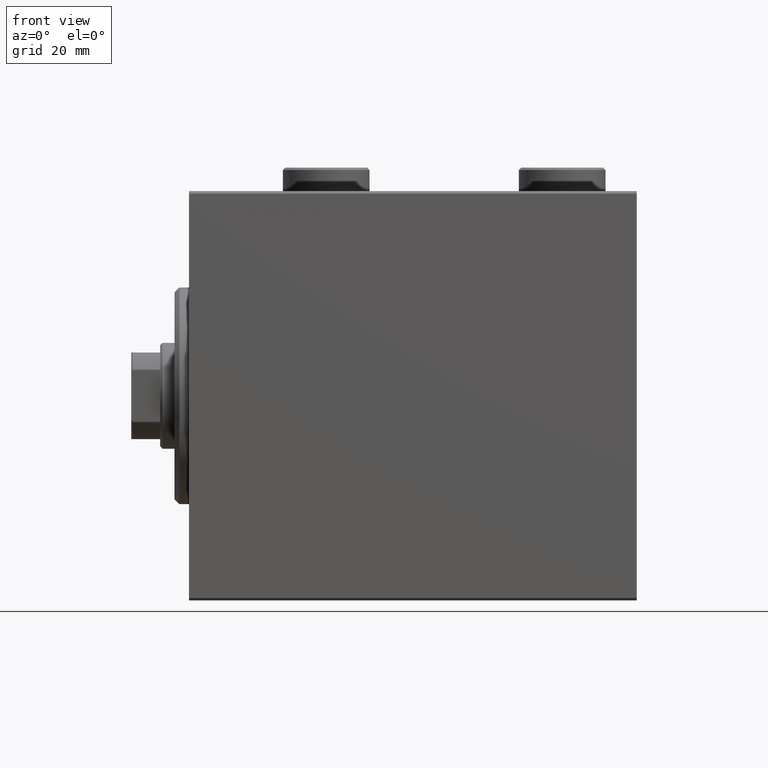
[diagram: clean part render]
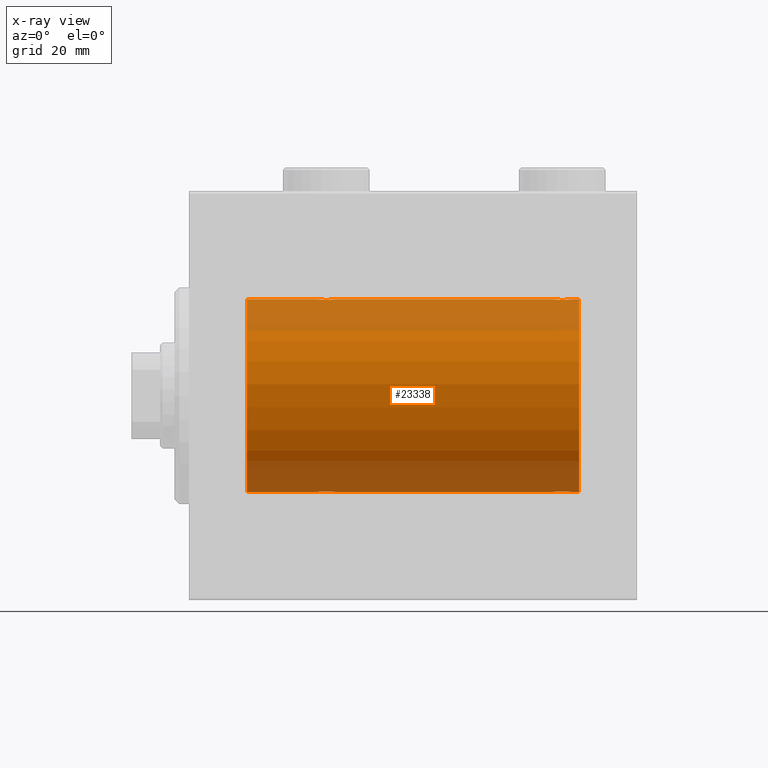
[diagram: x-ray — body ghosted, one internal face saturated and labeled with its STEP entity id]
A machine part, front view, then the same camera in x-ray: the body is ghosted and one INTERNAL B-rep face — a face not visible from any outside direction — is saturated and labeled: STEP entity #23338.
In plain terms, the highlighted cylindrical surface (partial cylindrical patch) has radius 20 mm, axis along (-1, -0, -0).
Its self-contained STEP definition (entity closure, byte-faithful):
#63 = CARTESIAN_POINT ( 'NONE',  ( 75.90225308445273811, -1.230936344679278038, -19.96293863536309487 ) ) ;
#438 = DIRECTION ( 'NONE',  ( -1.000000000000000000, 0.000000000000000000, 0.000000000000000000 ) ) ;
#499 = CARTESIAN_POINT ( 'NONE',  ( 27.17693331080529973, -1.505486175075773758, 19.94347168299867334 ) ) ;
#519 = CARTESIAN_POINT ( 'NONE',  ( 76.85651471266960755, -1.898187925611341198, -19.90978194174746818 ) ) ;
#727 = CARTESIAN_POINT ( 'NONE',  ( 29.01648532918905943, -1.936551476643006753, 19.90603968831098669 ) ) ;
#896 = CARTESIAN_POINT ( 'NONE',  ( 26.50000000000001066, -0.2644051013331030209, -20.00000000000000355 ) ) ;
#1372 = CARTESIAN_POINT ( 'NONE',  ( 26.75313023696928738, -1.008108445278687704, -19.97602680192586533 ) ) ;
#1428 = CARTESIAN_POINT ( 'NONE',  ( 30.24686976303072683, -1.008108445278685705, 19.97602680192586888 ) ) ;
#1672 = VECTOR ( 'NONE', #37899, 1000.000000000000000 ) ;
#2284 = ORIENTED_EDGE ( 'NONE', *, *, #42027, .F. ) ;
#2572 = ORIENTED_EDGE ( 'NONE', *, *, #6962, .T. ) ;
#2782 = CARTESIAN_POINT ( 'NONE',  ( 78.14348528733044930, -1.898187925611334315, 19.90978194174746818 ) ) ;
#3000 = CARTESIAN_POINT ( 'NONE',  ( 77.76077256031568652, -1.987205673487806967, 19.90104673894210663 ) ) ;
#3229 = CARTESIAN_POINT ( 'NONE',  ( 76.17693331080532460, -1.505486175075777311, 19.94347168299868045 ) ) ;
#3537 = CARTESIAN_POINT ( 'NONE',  ( 78.14630673924648363, -1.897222639860595139, -19.90987429971497136 ) ) ;
#3890 = VERTEX_POINT ( 'NONE', #41304 ) ;
#3983 = CARTESIAN_POINT ( 'NONE',  ( 78.50306556339604924, -1.735203193119893461, -19.92471783160911514 ) ) ;
#4141 = CARTESIAN_POINT ( 'NONE',  ( 28.76358144091416236, -1.986835489085814199, -19.90108393514801222 ) ) ;
#4199 = CARTESIAN_POINT ( 'NONE',  ( 28.76077256031567586, -1.987205673487809410, 19.90104673894210663 ) ) ;
#4374 = CARTESIAN_POINT ( 'NONE',  ( 28.23922743968432059, -1.987205673487808966, -19.90104673894211018 ) ) ;
#4472 = DIRECTION ( 'NONE',  ( 0.000000000000000000, 0.000000000000000000, 1.000000000000000000 ) ) ;
#4832 = CARTESIAN_POINT ( 'NONE',  ( 29.14630673924643744, -1.897222639860594029, -19.90987429971496780 ) ) ;
#4835 = ORIENTED_EDGE ( 'NONE', *, *, #15809, .T. ) ;
#4890 = LINE ( 'NONE', #40601, #44136 ) ;
#5067 = CARTESIAN_POINT ( 'NONE',  ( 28.36941128289166159, -2.000100592782553921, -19.89973863218036598 ) ) ;
#5332 = CARTESIAN_POINT ( 'NONE',  ( 81.00000000000000000, 0.000000000000000000, 20.00000000000000000 ) ) ;
#5348 = CARTESIAN_POINT ( 'NONE',  ( 30.50000000000000000, -1.082540790071359066E-15, 20.00000000000000000 ) ) ;
#5679 = CIRCLE ( 'NONE', #40254, 20.00000000000000000 ) ;
#6008 = CARTESIAN_POINT ( 'NONE',  ( 78.71805419472153176, -1.591668229360190034, 19.93669678979813042 ) ) ;
#6045 = VERTEX_POINT ( 'NONE', #18847 ) ;
#6229 = CARTESIAN_POINT ( 'NONE',  ( 78.38579076670730217, -1.797933656607910491, 19.91908554465557657 ) ) ;
#6682 = CARTESIAN_POINT ( 'NONE',  ( 30.50000000000000000, 2.449293582768389958E-15, -20.00000000000000000 ) ) ;
#6755 = CARTESIAN_POINT ( 'NONE',  ( 75.55320515808202231, -0.5270924491156711023, -19.99450181871975474 ) ) ;
#6784 = LINE ( 'NONE', #23852, #1672 ) ;
#6962 = EDGE_CURVE ( 'NONE', #38699, #45073, #5679, .T. ) ;
#6981 = CARTESIAN_POINT ( 'NONE',  ( 76.61420923329272625, -1.797933656607920039, -19.91908554465557657 ) ) ;
#7165 = ORIENTED_EDGE ( 'NONE', *, *, #21852, .F. ) ;
#7428 = CARTESIAN_POINT ( 'NONE',  ( 79.44755062882509833, -0.5243189001515005110, -19.99457699142850231 ) ) ;
#7628 = CARTESIAN_POINT ( 'NONE',  ( 26.50000000000000355, -1.552636033655995435E-23, 20.00000000000000000 ) ) ;
#7643 = CARTESIAN_POINT ( 'NONE',  ( 28.23641855908585541, -1.986835489085815087, 19.90108393514801222 ) ) ;
#8348 = CIRCLE ( 'NONE', #10546, 20.00000000000000000 ) ;
#8451 = EDGE_CURVE ( 'NONE', #27654, #3890, #35405, .T. ) ;
#8507 = CARTESIAN_POINT ( 'NONE',  ( 29.38829437207091999, -1.796691196322316664, -19.91919800395357143 ) ) ;
#8666 = LINE ( 'NONE', #30094, #27153 ) ;
#9029 = VERTEX_POINT ( 'NONE', #32947 ) ;
#9244 = CARTESIAN_POINT ( 'NONE',  ( 79.50000000000000000, -0.2644051013330986355, 19.99999999999999645 ) ) ;
#9691 = VECTOR ( 'NONE', #40810, 1000.000000000000000 ) ;
#9906 = CARTESIAN_POINT ( 'NONE',  ( 76.85369326075358742, -1.897222639860597360, 19.90987429971497491 ) ) ;
#9942 = B_SPLINE_CURVE_WITH_KNOTS ( 'NONE', 3,
 ( #28382, #42446, #10877, #32060, #24931, #499, #39439, #28620, #38982, #11100, #25154, #7643, #21702, #35749, #4199, #727, #18229, #28842, #26771, #43596, #33672, #40138, #1428, #36688, #12253, #5348 ),
 .UNSPECIFIED., .F., .F.,
 ( 4, 2, 2, 2, 2, 2, 2, 2, 2, 2, 2, 2, 4 ),
 ( 0.006256819553329830141, 0.007038738568778805417, 0.007820657584227780693, 0.008211617091952264427, 0.008602576599676748162, 0.008993536107401231897, 0.009384495615125715631, 0.009775455122850199366, 0.01016641463057468137, 0.01055737413829916510, 0.01094833364602364884, 0.01173025266147261630, 0.01251217167692158204 ),
 .UNSPECIFIED. ) ;
#10367 = CARTESIAN_POINT ( 'NONE',  ( 30.24825913460018612, -1.005710574260838985, -19.97614991974274190 ) ) ;
#10395 = ORIENTED_EDGE ( 'NONE', *, *, #21653, .T. ) ;
#10546 = AXIS2_PLACEMENT_3D ( 'NONE', #37780, #13568, #30638 ) ;
#10877 = CARTESIAN_POINT ( 'NONE',  ( 26.55244937117492299, -0.5243189001515023984, 19.99457699142850942 ) ) ;
#10895 = CARTESIAN_POINT ( 'NONE',  ( 79.50000000000001421, 2.449293582762867932E-15, -20.00000000000000000 ) ) ;
#11100 = CARTESIAN_POINT ( 'NONE',  ( 27.85369326075355900, -1.897222639860597360, 19.90987429971497136 ) ) ;
#11115 = CARTESIAN_POINT ( 'NONE',  ( 78.82306668919471804, -1.505486175075773758, -19.94347168299867690 ) ) ;
#11269 = CARTESIAN_POINT ( 'NONE',  ( 79.50000000000001421, 2.449293582762867932E-15, -20.00000000000000000 ) ) ;
#12194 = CARTESIAN_POINT ( 'NONE',  ( 27.17903093152710525, -1.507328959728492457, -19.94333197382385592 ) ) ;
#12253 = CARTESIAN_POINT ( 'NONE',  ( 30.50000000000000355, -0.2644051013330980249, 20.00000000000000355 ) ) ;
#12919 = CARTESIAN_POINT ( 'NONE',  ( 79.44679484191796348, -0.5270924491156662173, 19.99450181871975829 ) ) ;
#13435 = LINE ( 'NONE', #17563, #22559 ) ;
#13568 = DIRECTION ( 'NONE',  ( -1.000000000000000000, 0.000000000000000000, 0.000000000000000000 ) ) ;
#13819 = CARTESIAN_POINT ( 'NONE',  ( 30.44755062882508412, -0.5243189001514996228, -19.99457699142849876 ) ) ;
#13895 = CARTESIAN_POINT ( 'NONE',  ( 75.50000000000001421, -5.133775462521235346E-15, -20.00000000000000000 ) ) ;
#14034 = CARTESIAN_POINT ( 'NONE',  ( 29.50306556339602437, -1.735203193119894349, -19.92471783160910803 ) ) ;
#14567 = CARTESIAN_POINT ( 'NONE',  ( 77.76358144091416591, -1.986835489085815309, -19.90108393514801577 ) ) ;
#14969 = AXIS2_PLACEMENT_3D ( 'NONE', #22216, #18740, #4472 ) ;
#15421 = CARTESIAN_POINT ( 'NONE',  ( 26.50000000000000355, -3.809869420541414000E-15, -20.00000000000000000 ) ) ;
#15809 = EDGE_CURVE ( 'NONE', #28158, #27654, #6784, .T. ) ;
#16587 = CARTESIAN_POINT ( 'NONE',  ( 77.23641855908587672, -1.986835489085812867, 19.90108393514801577 ) ) ;
#17490 = CARTESIAN_POINT ( 'NONE',  ( 29.72028945794465571, -1.589957321664208223, -19.93683391378736047 ) ) ;
#17563 = CARTESIAN_POINT ( 'NONE',  ( 81.00000000000000000, 0.000000000000000000, 20.00000000000000000 ) ) ;
#18010 = CARTESIAN_POINT ( 'NONE',  ( 78.01923512135279282, -1.935816449315126642, -19.90611141657402072 ) ) ;
#18064 = ORIENTED_EDGE ( 'NONE', *, *, #8451, .T. ) ;
#18229 = CARTESIAN_POINT ( 'NONE',  ( 29.14348528733042798, -1.898187925611338089, 19.90978194174746818 ) ) ;
#18399 = CARTESIAN_POINT ( 'NONE',  ( 27.85651471266959334, -1.898187925611338533, -19.90978194174746818 ) ) ;
#18740 = DIRECTION ( 'NONE',  ( -1.000000000000000000, -0.000000000000000000, -0.000000000000000000 ) ) ;
#18847 = CARTESIAN_POINT ( 'NONE',  ( 75.50000000000001421, -1.553188236289650144E-23, 20.00000000000000000 ) ) ;
#18862 = CARTESIAN_POINT ( 'NONE',  ( 29.01923512135276795, -1.935816449315124643, -19.90611141657401717 ) ) ;
#19097 = CARTESIAN_POINT ( 'NONE',  ( 27.49932780860757475, -1.736582545981376180, -19.92459705242981371 ) ) ;
#20810 = ORIENTED_EDGE ( 'NONE', *, *, #37667, .T. ) ;
#20975 = ORIENTED_EDGE ( 'NONE', *, *, #44849, .F. ) ;
#21485 = DIRECTION ( 'NONE',  ( -1.000000000000000000, -0.000000000000000000, -0.000000000000000000 ) ) ;
#21487 = CARTESIAN_POINT ( 'NONE',  ( 79.09941524884031594, -1.228758402364235947, -19.96307487248084556 ) ) ;
#21649 = CARTESIAN_POINT ( 'NONE',  ( 26.55320515808203297, -0.5270924491156698810, -19.99450181871976184 ) ) ;
#21653 = EDGE_CURVE ( 'NONE', #9029, #38699, #27749, .T. ) ;
#21702 = CARTESIAN_POINT ( 'NONE',  ( 28.36634803857552356, -1.999898234284064769, 19.89975896996866567 ) ) ;
#21721 = CARTESIAN_POINT ( 'NONE',  ( 79.50000000000001421, 9.984444632918768135E-16, 20.00000000000000000 ) ) ;
#21852 = EDGE_CURVE ( 'NONE', #28158, #32538, #8348, .T. ) ;
#22216 = CARTESIAN_POINT ( 'NONE',  ( 81.00000000000000000, 0.000000000000000000, 0.000000000000000000 ) ) ;
#22559 = VECTOR ( 'NONE', #21485, 1000.000000000000000 ) ;
#22924 = VERTEX_POINT ( 'NONE', #7628 ) ;
#23108 = B_SPLINE_CURVE_WITH_KNOTS ( 'NONE', 3,
 ( #6682, #31327, #13819, #10367, #24419, #38477, #17490, #14034, #8507, #4832, #18862, #4141, #35936, #5067, #4374, #39852, #18399, #40321, #19097, #39383, #12194, #26258, #1372, #21649, #896, #15421 ),
 .UNSPECIFIED., .F., .F.,
 ( 4, 2, 2, 2, 2, 2, 2, 2, 2, 2, 2, 2, 4 ),
 ( 0.006256819553329842284, 0.007038738568778818427, 0.007820657584227792836, 0.008211617091952278305, 0.008602576599676762040, 0.008993536107401245774, 0.009384495615125729509, 0.009775455122850213244, 0.01016641463057469871, 0.01055737413829918071, 0.01094833364602366618, 0.01173025266147263365, 0.01251217167692159939 ),
 .UNSPECIFIED. ) ;
#23338 = ADVANCED_FACE ( 'NONE', ( #39959 ), #25898, .F. ) ;
#23530 = CARTESIAN_POINT ( 'NONE',  ( 78.01648532918905232, -1.936551476643001646, 19.90603968831098669 ) ) ;
#23852 = CARTESIAN_POINT ( 'NONE',  ( 81.00000000000000000, 2.449293598294706513E-15, -20.00000000000000000 ) ) ;
#23964 = CARTESIAN_POINT ( 'NONE',  ( 77.36634803857556619, -1.999898234284061216, 19.89975896996866922 ) ) ;
#24199 = CARTESIAN_POINT ( 'NONE',  ( 75.55244937117491588, -0.5243189001515020653, 19.99457699142849876 ) ) ;
#24419 = CARTESIAN_POINT ( 'NONE',  ( 30.09941524884030173, -1.228758402364235502, -19.96307487248084911 ) ) ;
#24931 = CARTESIAN_POINT ( 'NONE',  ( 26.90058475115969117, -1.228758402364236169, 19.96307487248083845 ) ) ;
#25154 = CARTESIAN_POINT ( 'NONE',  ( 27.98076487864722850, -1.935816449315125753, 19.90611141657402072 ) ) ;
#25172 = CARTESIAN_POINT ( 'NONE',  ( 76.17903093152709459, -1.507328959728491791, -19.94333197382385592 ) ) ;
#25286 = ORIENTED_EDGE ( 'NONE', *, *, #33674, .F. ) ;
#25787 = DIRECTION ( 'NONE',  ( 0.000000000000000000, 0.000000000000000000, 1.000000000000000000 ) ) ;
#25898 = CYLINDRICAL_SURFACE ( 'NONE', #14969, 20.00000000000000000 ) ;
#26258 = CARTESIAN_POINT ( 'NONE',  ( 26.90225308445269903, -1.230936344679278260, -19.96293863536309132 ) ) ;
#26763 = CARTESIAN_POINT ( 'NONE',  ( 75.50000000000001421, -1.553188236289650144E-23, 20.00000000000000000 ) ) ;
#26771 = CARTESIAN_POINT ( 'NONE',  ( 29.50067219139243235, -1.736582545981374182, 19.92459705242980306 ) ) ;
#26985 = CARTESIAN_POINT ( 'NONE',  ( 76.49693443660399339, -1.735203193119890352, 19.92471783160910803 ) ) ;
#27153 = VECTOR ( 'NONE', #37232, 1000.000000000000000 ) ;
#27208 = CARTESIAN_POINT ( 'NONE',  ( 76.27971054205535495, -1.589957321664204448, 19.93683391378736403 ) ) ;
#27213 = CARTESIAN_POINT ( 'NONE',  ( 81.00000000000000000, 2.449293598294706513E-15, -20.00000000000000000 ) ) ;
#27654 = VERTEX_POINT ( 'NONE', #11269 ) ;
#27729 = CARTESIAN_POINT ( 'NONE',  ( 78.38829437207094486, -1.796691196322316886, -19.91919800395357143 ) ) ;
#27749 = LINE ( 'NONE', #39658, #30414 ) ;
#28158 = VERTEX_POINT ( 'NONE', #27213 ) ;
#28179 = CARTESIAN_POINT ( 'NONE',  ( 77.36941128289169001, -2.000100592782554809, -19.89973863218035888 ) ) ;
#28382 = CARTESIAN_POINT ( 'NONE',  ( 26.50000000000000355, -1.552636033655995435E-23, 20.00000000000000000 ) ) ;
#28405 = CARTESIAN_POINT ( 'NONE',  ( 75.75313023696931225, -1.008108445278686816, -19.97602680192586178 ) ) ;
#28620 = CARTESIAN_POINT ( 'NONE',  ( 27.49693443660397207, -1.735203193119897458, 19.92471783160910448 ) ) ;
#28636 = CARTESIAN_POINT ( 'NONE',  ( 79.50000000000002842, -0.2610801504281906049, -19.99999999999999645 ) ) ;
#28842 = CARTESIAN_POINT ( 'NONE',  ( 29.38579076670728085, -1.797933656607916264, 19.91908554465557302 ) ) ;
#28856 = VERTEX_POINT ( 'NONE', #21721 ) ;
#30094 = CARTESIAN_POINT ( 'NONE',  ( 81.00000000000000000, 2.449293598294706513E-15, -20.00000000000000000 ) ) ;
#30218 = CARTESIAN_POINT ( 'NONE',  ( 76.98076487864726403, -1.935816449315123977, 19.90611141657402072 ) ) ;
#30414 = VECTOR ( 'NONE', #43103, 1000.000000000000000 ) ;
#30436 = CARTESIAN_POINT ( 'NONE',  ( 75.75174086539985296, -1.005710574260841428, 19.97614991974274190 ) ) ;
#30638 = DIRECTION ( 'NONE',  ( 0.000000000000000000, 0.000000000000000000, 1.000000000000000000 ) ) ;
#30659 = CARTESIAN_POINT ( 'NONE',  ( 75.90058475115971248, -1.228758402364240832, 19.96307487248084911 ) ) ;
#30880 = CARTESIAN_POINT ( 'NONE',  ( 79.50000000000001421, 9.984444632918768135E-16, 20.00000000000000000 ) ) ;
#31327 = CARTESIAN_POINT ( 'NONE',  ( 30.49999999999999645, -0.2610801504281900498, -19.99999999999999645 ) ) ;
#31403 = CARTESIAN_POINT ( 'NONE',  ( 75.50000000000000000, -0.2644051013331069067, -19.99999999999999289 ) ) ;
#32000 = CARTESIAN_POINT ( 'NONE',  ( 11.99999999999999645, 0.000000000000000000, 0.000000000000000000 ) ) ;
#32060 = CARTESIAN_POINT ( 'NONE',  ( 26.75174086539981033, -1.005710574260841206, 19.97614991974274545 ) ) ;
#32080 = CARTESIAN_POINT ( 'NONE',  ( 77.63365196142453328, -1.999898234284062104, -19.89975896996866211 ) ) ;
#32311 = CARTESIAN_POINT ( 'NONE',  ( 76.98351467081099031, -1.936551476643008529, -19.90603968831099024 ) ) ;
#32538 = VERTEX_POINT ( 'NONE', #38367 ) ;
#32947 = CARTESIAN_POINT ( 'NONE',  ( 26.50000000000000355, -3.809869420541414000E-15, -20.00000000000000000 ) ) ;
#32988 = DIRECTION ( 'NONE',  ( -1.000000000000000000, -0.000000000000000000, -0.000000000000000000 ) ) ;
#33672 = CARTESIAN_POINT ( 'NONE',  ( 29.82096906847289830, -1.507328959728490236, 19.94333197382385592 ) ) ;
#33674 = EDGE_CURVE ( 'NONE', #32538, #28856, #13435, .T. ) ;
#34330 = CARTESIAN_POINT ( 'NONE',  ( 75.50000000000002842, -0.2610801504281928254, 20.00000000000000355 ) ) ;
#34841 = CARTESIAN_POINT ( 'NONE',  ( 11.99999999999999645, 0.000000000000000000, 20.00000000000000000 ) ) ;
#35089 = CARTESIAN_POINT ( 'NONE',  ( 78.72028945794467347, -1.589957321664207113, -19.93683391378736758 ) ) ;
#35266 = ORIENTED_EDGE ( 'NONE', *, *, #42985, .T. ) ;
#35405 = B_SPLINE_CURVE_WITH_KNOTS ( 'NONE', 3,
 ( #10895, #28636, #7428, #45470, #21487, #11115, #35089, #3983, #27729, #3537, #18010, #14567, #32080, #28179, #42693, #32311, #519, #6981, #38552, #42237, #25172, #63, #28405, #6755, #31403, #13895 ),
 .UNSPECIFIED., .F., .F.,
 ( 4, 2, 2, 2, 2, 2, 2, 2, 2, 2, 2, 2, 4 ),
 ( 0.006256819553329831876, 0.007038738568778780264, 0.007820657584227728651, 0.008211617091952217590, 0.008602576599676706529, 0.008993536107401195467, 0.009384495615125684406, 0.009775455122850173345, 0.01016641463057466055, 0.01055737413829914775, 0.01094833364602363843, 0.01173025266147261284, 0.01251217167692158898 ),
 .UNSPECIFIED. ) ;
#35749 = CARTESIAN_POINT ( 'NONE',  ( 28.63058871710834552, -2.000100592782553921, 19.89973863218035888 ) ) ;
#35936 = CARTESIAN_POINT ( 'NONE',  ( 28.63365196142448355, -1.999898234284062992, -19.89975896996866211 ) ) ;
#36140 = EDGE_LOOP ( 'NONE', ( #7165, #4835, #18064, #41604, #35266, #10395, #2572, #2284, #40286, #20975, #20810, #25286 ) ) ;
#36688 = CARTESIAN_POINT ( 'NONE',  ( 30.44679484191799901, -0.5270924491156695479, 19.99450181871976540 ) ) ;
#36896 = LINE ( 'NONE', #5332, #9691 ) ;
#37232 = DIRECTION ( 'NONE',  ( -1.000000000000000000, -0.000000000000000000, -0.000000000000000000 ) ) ;
#37419 = CARTESIAN_POINT ( 'NONE',  ( 30.50000000000000000, -1.082540790071359066E-15, 20.00000000000000000 ) ) ;
#37580 = CARTESIAN_POINT ( 'NONE',  ( 78.50067219139245367, -1.736582545981369075, 19.92459705242980661 ) ) ;
#37667 = EDGE_CURVE ( 'NONE', #6045, #28856, #40831, .T. ) ;
#37682 = CARTESIAN_POINT ( 'NONE',  ( 30.50000000000000000, 2.449293582768389958E-15, -20.00000000000000000 ) ) ;
#37780 = CARTESIAN_POINT ( 'NONE',  ( 81.00000000000000000, 0.000000000000000000, 0.000000000000000000 ) ) ;
#37899 = DIRECTION ( 'NONE',  ( -1.000000000000000000, -0.000000000000000000, -0.000000000000000000 ) ) ;
#38017 = CARTESIAN_POINT ( 'NONE',  ( 79.09774691554731874, -1.230936344679271599, 19.96293863536309487 ) ) ;
#38367 = CARTESIAN_POINT ( 'NONE',  ( 81.00000000000000000, 0.000000000000000000, 20.00000000000000000 ) ) ;
#38477 = CARTESIAN_POINT ( 'NONE',  ( 29.82306668919470383, -1.505486175075772870, -19.94347168299867334 ) ) ;
#38552 = CARTESIAN_POINT ( 'NONE',  ( 76.49932780860757475, -1.736582545981372405, -19.92459705242980661 ) ) ;
#38699 = VERTEX_POINT ( 'NONE', #44002 ) ;
#38982 = CARTESIAN_POINT ( 'NONE',  ( 27.61170562792909067, -1.796691196322318662, 19.91919800395356788 ) ) ;
#39383 = CARTESIAN_POINT ( 'NONE',  ( 27.28194580527848601, -1.591668229360197140, -19.93669678979812332 ) ) ;
#39439 = CARTESIAN_POINT ( 'NONE',  ( 27.27971054205536205, -1.589957321664211998, 19.93683391378736758 ) ) ;
#39658 = CARTESIAN_POINT ( 'NONE',  ( 81.00000000000000000, 2.449293598294706513E-15, -20.00000000000000000 ) ) ;
#39744 = EDGE_CURVE ( 'NONE', #3890, #40676, #8666, .T. ) ;
#39852 = CARTESIAN_POINT ( 'NONE',  ( 27.98351467081095123, -1.936551476643005198, -19.90603968831098314 ) ) ;
#39959 = FACE_OUTER_BOUND ( 'NONE', #36140, .T. ) ;
#40138 = CARTESIAN_POINT ( 'NONE',  ( 30.09774691554731163, -1.230936344679276484, 19.96293863536309843 ) ) ;
#40254 = AXIS2_PLACEMENT_3D ( 'NONE', #32000, #438, #25787 ) ;
#40286 = ORIENTED_EDGE ( 'NONE', *, *, #41949, .T. ) ;
#40321 = CARTESIAN_POINT ( 'NONE',  ( 27.61420923329272981, -1.797933656607917596, -19.91908554465558367 ) ) ;
#40601 = CARTESIAN_POINT ( 'NONE',  ( 81.00000000000000000, 0.000000000000000000, 20.00000000000000000 ) ) ;
#40676 = VERTEX_POINT ( 'NONE', #37682 ) ;
#40810 = DIRECTION ( 'NONE',  ( -1.000000000000000000, -0.000000000000000000, -0.000000000000000000 ) ) ;
#40820 = CARTESIAN_POINT ( 'NONE',  ( 79.24686976303071617, -1.008108445278683041, 19.97602680192586178 ) ) ;
#40831 = B_SPLINE_CURVE_WITH_KNOTS ( 'NONE', 3,
 ( #26763, #34330, #24199, #30436, #30659, #3229, #27208, #26985, #41485, #9906, #30218, #16587, #23964, #44491, #3000, #23530, #2782, #6229, #37580, #6008, #45162, #38017, #40820, #12919, #9244, #30880 ),
 .UNSPECIFIED., .F., .F.,
 ( 4, 2, 2, 2, 2, 2, 2, 2, 2, 2, 2, 2, 4 ),
 ( 0.006256819553329837080, 0.007038738568778785468, 0.007820657584227733855, 0.008211617091952224529, 0.008602576599676711733, 0.008993536107401200672, 0.009384495615125689610, 0.009775455122850176815, 0.01016641463057466749, 0.01055737413829915469, 0.01094833364602364190, 0.01173025266147261977, 0.01251217167692159592 ),
 .UNSPECIFIED. ) ;
#41304 = CARTESIAN_POINT ( 'NONE',  ( 75.50000000000001421, -5.133775462521235346E-15, -20.00000000000000000 ) ) ;
#41485 = CARTESIAN_POINT ( 'NONE',  ( 76.61170562792908356, -1.796691196322320216, 19.91919800395356788 ) ) ;
#41604 = ORIENTED_EDGE ( 'NONE', *, *, #39744, .T. ) ;
#41744 = VERTEX_POINT ( 'NONE', #37419 ) ;
#41949 = EDGE_CURVE ( 'NONE', #22924, #41744, #9942, .T. ) ;
#42027 = EDGE_CURVE ( 'NONE', #22924, #45073, #4890, .T. ) ;
#42237 = CARTESIAN_POINT ( 'NONE',  ( 76.28194580527848245, -1.591668229360193143, -19.93669678979812332 ) ) ;
#42446 = CARTESIAN_POINT ( 'NONE',  ( 26.50000000000001421, -0.2610801504281925478, 20.00000000000000000 ) ) ;
#42693 = CARTESIAN_POINT ( 'NONE',  ( 77.23922743968434190, -1.987205673487811630, -19.90104673894211018 ) ) ;
#42985 = EDGE_CURVE ( 'NONE', #40676, #9029, #23108, .T. ) ;
#43103 = DIRECTION ( 'NONE',  ( -1.000000000000000000, -0.000000000000000000, -0.000000000000000000 ) ) ;
#43596 = CARTESIAN_POINT ( 'NONE',  ( 29.71805419472152110, -1.591668229360196696, 19.93669678979813042 ) ) ;
#44002 = CARTESIAN_POINT ( 'NONE',  ( 11.99999999999999645, 2.449293598294706513E-15, -20.00000000000000000 ) ) ;
#44136 = VECTOR ( 'NONE', #32988, 1000.000000000000000 ) ;
#44491 = CARTESIAN_POINT ( 'NONE',  ( 77.63058871710833841, -2.000100592782551256, 19.89973863218035888 ) ) ;
#44849 = EDGE_CURVE ( 'NONE', #6045, #41744, #36896, .T. ) ;
#45073 = VERTEX_POINT ( 'NONE', #34841 ) ;
#45162 = CARTESIAN_POINT ( 'NONE',  ( 78.82096906847291962, -1.507328959728488238, 19.94333197382385947 ) ) ;
#45470 = CARTESIAN_POINT ( 'NONE',  ( 79.24825913460020388, -1.005710574260840984, -19.97614991974274901 ) ) ;